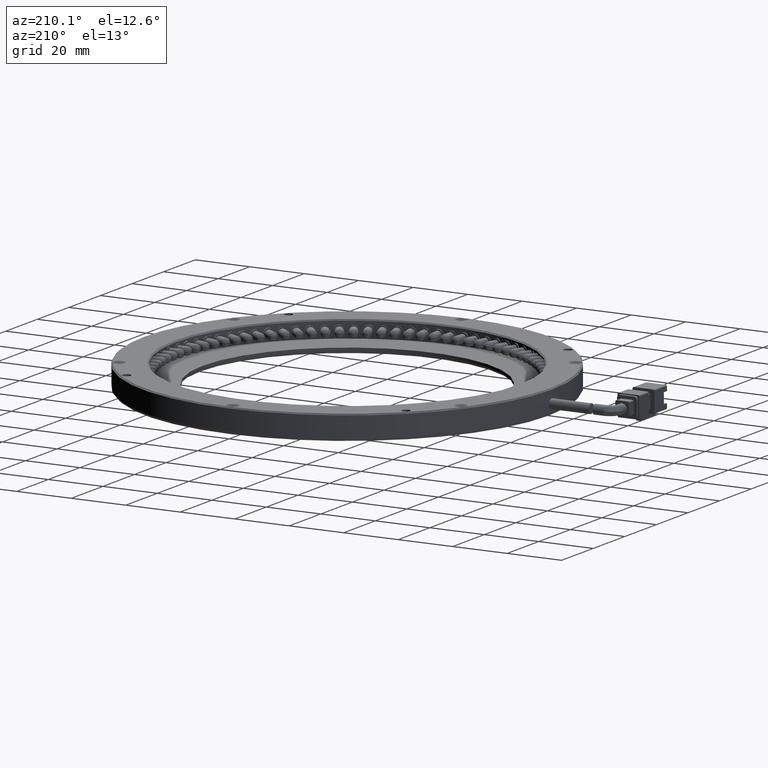
[diagram: clean part render]
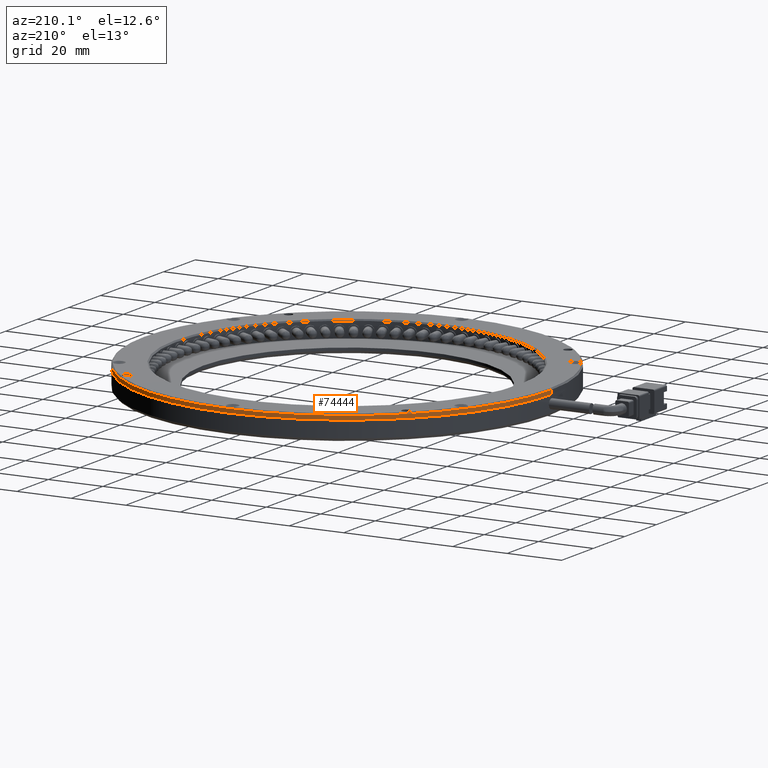
[diagram: same view with one face highlighted and labeled with its STEP entity id]
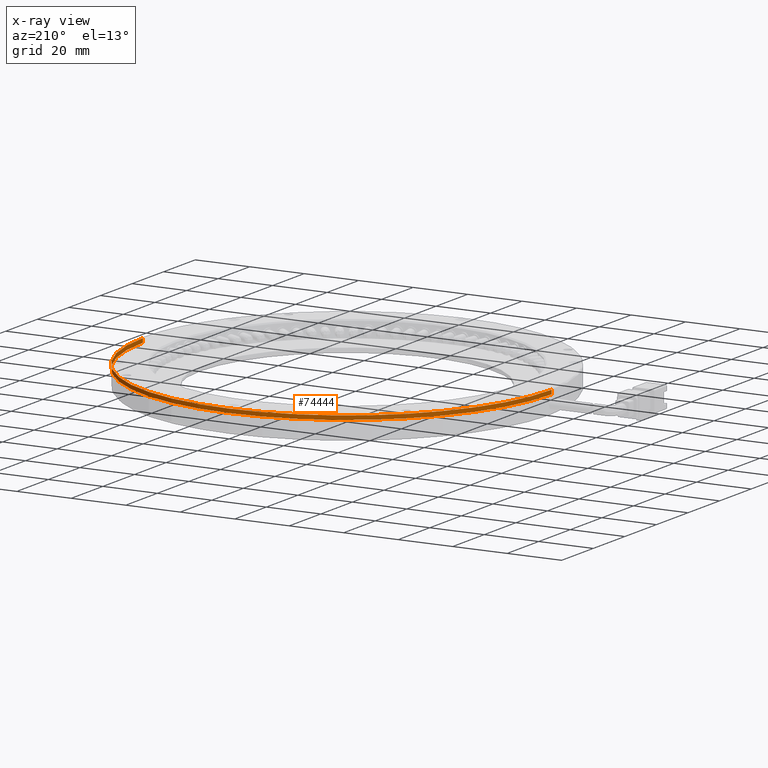
[diagram: x-ray of the same camera — body ghosted, the highlighted face saturated]
A machine part, auxiliary view. The second image highlights one B-rep face of the part: STEP entity #74444.
The next image is the same camera in x-ray: the body ghosted, the highlighted face saturated — about 0% of this face is hidden behind the body in this view.
In plain terms, the highlighted cylindrical surface (partial cylindrical patch) has radius 75 mm, axis along (-0, 0, 1).
Its self-contained STEP definition (entity closure, byte-faithful):
#3837 = EDGE_CURVE ( 'NONE', #7022, #65378, #54978, .T. ) ;
#4554 = LINE ( 'NONE', #54851, #37011 ) ;
#5760 = DIRECTION ( 'NONE',  ( -0.0000000000000000000, 0.0000000000000000000, 1.000000000000000000 ) ) ;
#7022 = VERTEX_POINT ( 'NONE', #62324 ) ;
#13627 = CIRCLE ( 'NONE', #43479, 75.00000000000001400 ) ;
#14761 = AXIS2_PLACEMENT_3D ( 'NONE', #35305, #77827, #23316 ) ;
#15280 = CARTESIAN_POINT ( 'NONE',  ( 85.82239847715739200, 1.095939086294428300, 4.999999999999978700 ) ) ;
#17433 = AXIS2_PLACEMENT_3D ( 'NONE', #42254, #5760, #48388 ) ;
#18412 = DIRECTION ( 'NONE',  ( -0.0000000000000000000, 0.0000000000000000000, 1.000000000000000000 ) ) ;
#22491 = FACE_OUTER_BOUND ( 'NONE', #59643, .T. ) ;
#23316 = DIRECTION ( 'NONE',  ( 1.000000000000000000, 5.782411586589353400E-018, 0.0000000000000000000 ) ) ;
#27386 = ORIENTED_EDGE ( 'NONE', *, *, #3837, .T. ) ;
#29082 = DIRECTION ( 'NONE',  ( -0.0000000000000000000, -0.0000000000000000000, 1.000000000000000000 ) ) ;
#30118 = CARTESIAN_POINT ( 'NONE',  ( -64.17760152284266400, 1.095939086294436500, 4.999999999999978700 ) ) ;
#30261 = EDGE_CURVE ( 'NONE', #7022, #50451, #4554, .T. ) ;
#31054 = CYLINDRICAL_SURFACE ( 'NONE', #14761, 75.00000000000004300 ) ;
#31795 = EDGE_CURVE ( 'NONE', #65378, #63440, #76815, .T. ) ;
#32924 = EDGE_CURVE ( 'NONE', #50451, #63440, #13627, .T. ) ;
#35211 = DIRECTION ( 'NONE',  ( -0.0000000000000000000, 0.0000000000000000000, 1.000000000000000000 ) ) ;
#35305 = CARTESIAN_POINT ( 'NONE',  ( 10.82239847715735900, 1.095939086294427800, 3.499999999999937400 ) ) ;
#37011 = VECTOR ( 'NONE', #18412, 1000.000000000000000 ) ;
#42254 = CARTESIAN_POINT ( 'NONE',  ( 10.82239847715735900, 1.095939086294427800, 3.499999999999937400 ) ) ;
#43479 = AXIS2_PLACEMENT_3D ( 'NONE', #65506, #29082, #71645 ) ;
#48388 = DIRECTION ( 'NONE',  ( 1.000000000000000000, 5.782411586589353400E-018, 0.0000000000000000000 ) ) ;
#50451 = VERTEX_POINT ( 'NONE', #15280 ) ;
#51149 = ORIENTED_EDGE ( 'NONE', *, *, #32924, .F. ) ;
#52217 = ORIENTED_EDGE ( 'NONE', *, *, #30261, .F. ) ;
#54851 = CARTESIAN_POINT ( 'NONE',  ( 85.82239847715739200, 1.095939086294428300, 3.499999999999937400 ) ) ;
#54978 = CIRCLE ( 'NONE', #17433, 75.00000000000004300 ) ;
#57388 = CARTESIAN_POINT ( 'NONE',  ( -64.17760152284269300, 1.095939086294436500, 3.499999999999937400 ) ) ;
#59643 = EDGE_LOOP ( 'NONE', ( #27386, #78394, #51149, #52217 ) ) ;
#60666 = VECTOR ( 'NONE', #35211, 1000.000000000000000 ) ;
#62324 = CARTESIAN_POINT ( 'NONE',  ( 85.82239847715739200, 1.095939086294428300, 3.499999999999937400 ) ) ;
#63440 = VERTEX_POINT ( 'NONE', #30118 ) ;
#65378 = VERTEX_POINT ( 'NONE', #57388 ) ;
#65506 = CARTESIAN_POINT ( 'NONE',  ( 10.82239847715735900, 1.095939086294427800, 4.999999999999978700 ) ) ;
#65508 = CARTESIAN_POINT ( 'NONE',  ( -64.17760152284269300, 1.095939086294436500, 3.499999999999937400 ) ) ;
#71645 = DIRECTION ( 'NONE',  ( -1.000000000000000000, -5.782411586589355700E-018, 0.0000000000000000000 ) ) ;
#74444 = ADVANCED_FACE ( 'NONE', ( #22491 ), #31054, .T. ) ;
#76815 = LINE ( 'NONE', #65508, #60666 ) ;
#77827 = DIRECTION ( 'NONE',  ( -0.0000000000000000000, 0.0000000000000000000, 1.000000000000000000 ) ) ;
#78394 = ORIENTED_EDGE ( 'NONE', *, *, #31795, .T. ) ;